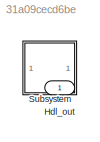
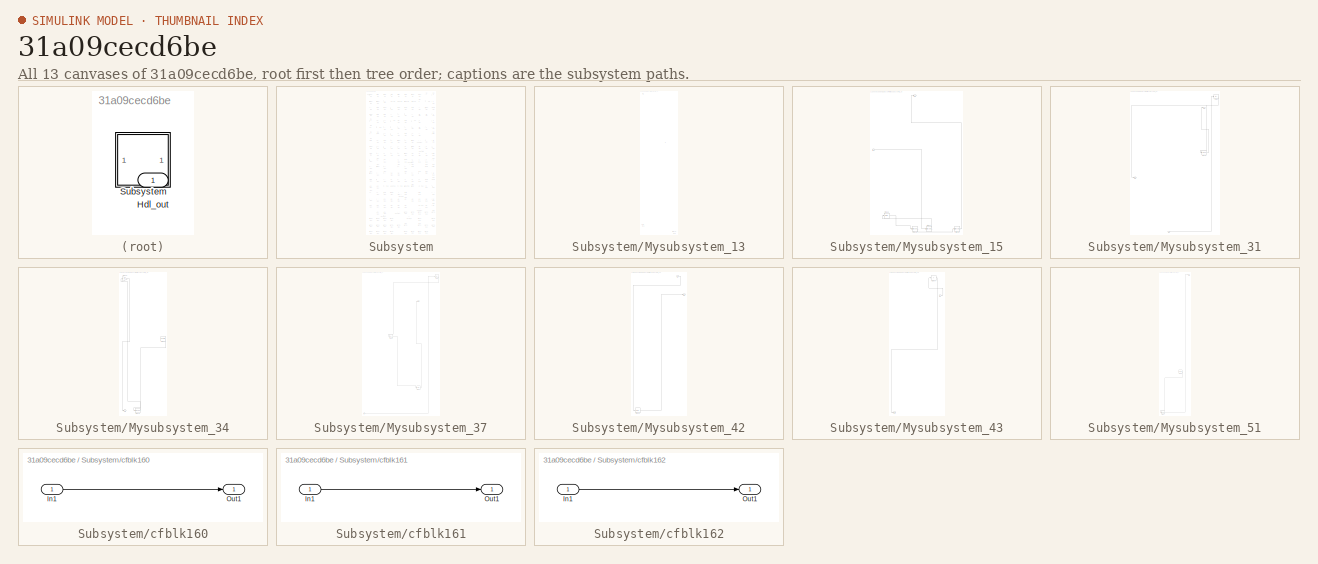
[diagram: thumbnail index - all 13 canvases of the model, root first then tree order]
MODEL slx_31a09cecd6be
KIND model
CONFIG AbsTol = auto
CONFIG EnableMultiTasking = off
CONFIG FixedStep = auto
CONFIG MaxStep = auto
CONFIG MinStep = auto
CONFIG RelTol = 1e-3
CONFIG SampleTimeConstraint = Unconstrained
CONFIG SolverName = VariableStepAuto
CONFIG StartTime = 0.0
CONFIG StopTime = 10.0
BLOCK [Outport] Hdl_out
  OutDataTypeStr = uint8
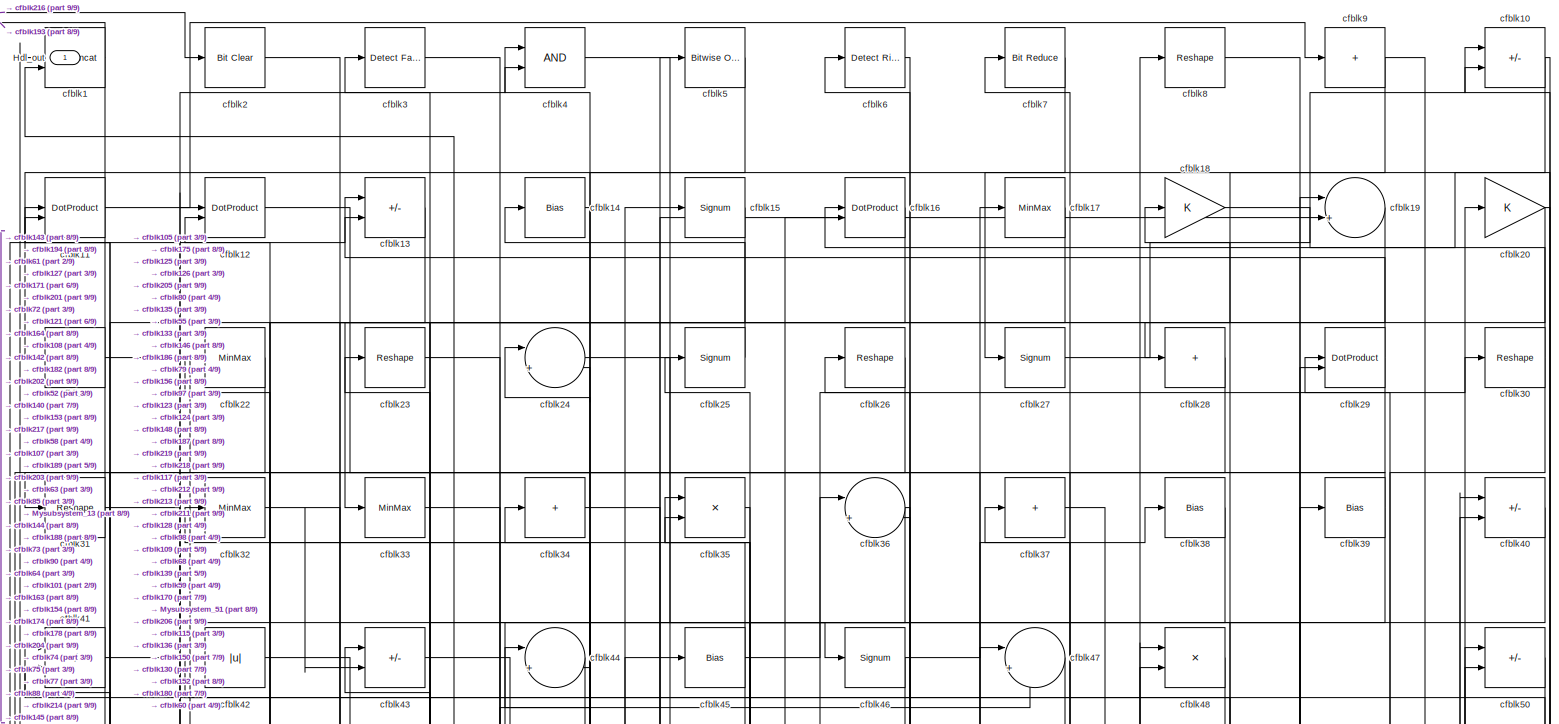
[diagram: Subsystem - part 1/9, full width, top band]
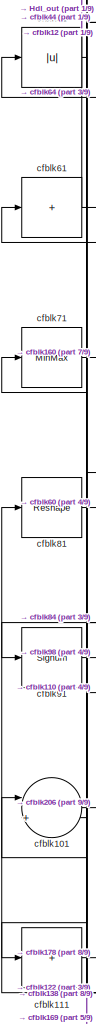
[diagram: Subsystem - part 2/9, middle left region]
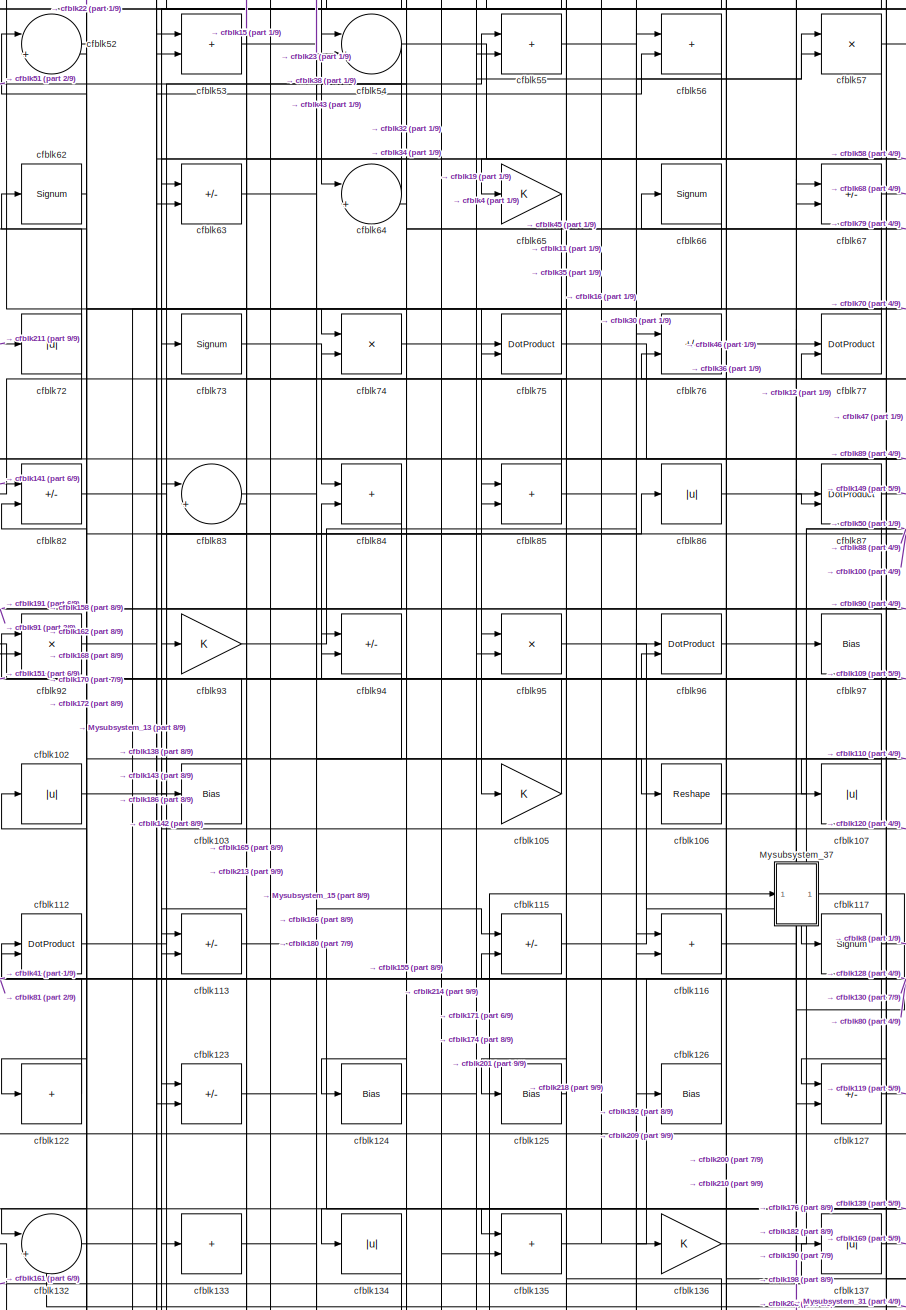
[diagram: Subsystem - part 3/9, central region]
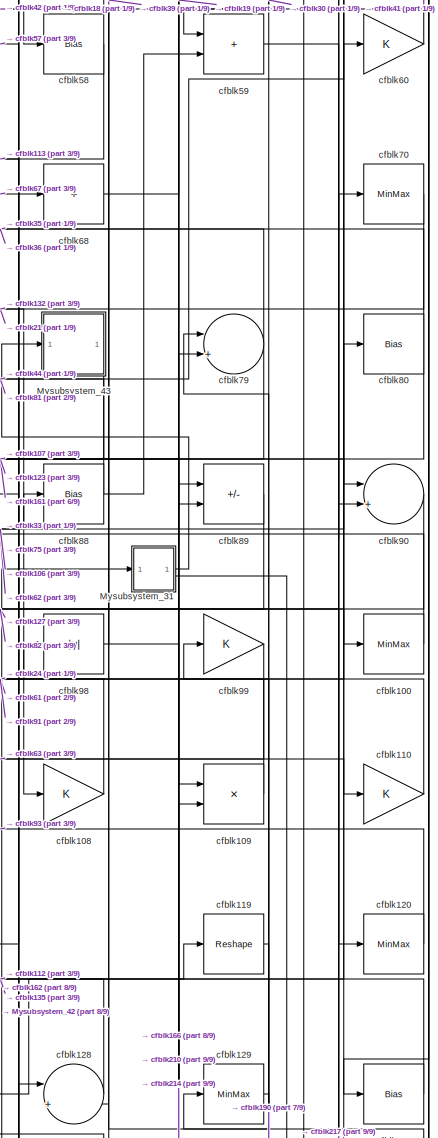
[diagram: Subsystem - part 4/9, middle right region]
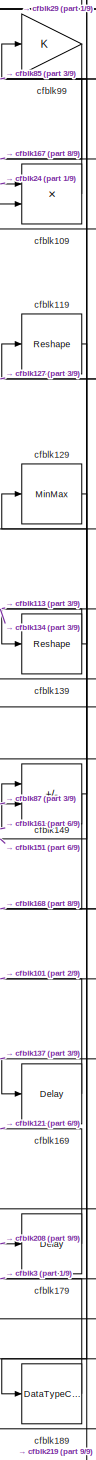
[diagram: Subsystem - part 5/9, middle right region]
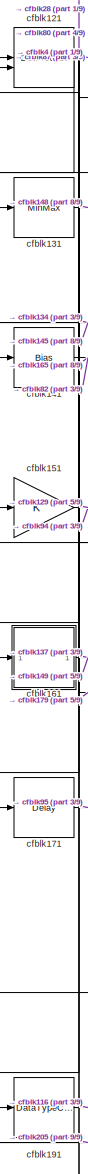
[diagram: Subsystem - part 6/9, bottom left region]
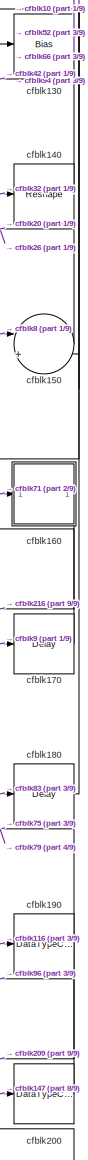
[diagram: Subsystem - part 7/9, bottom right region]
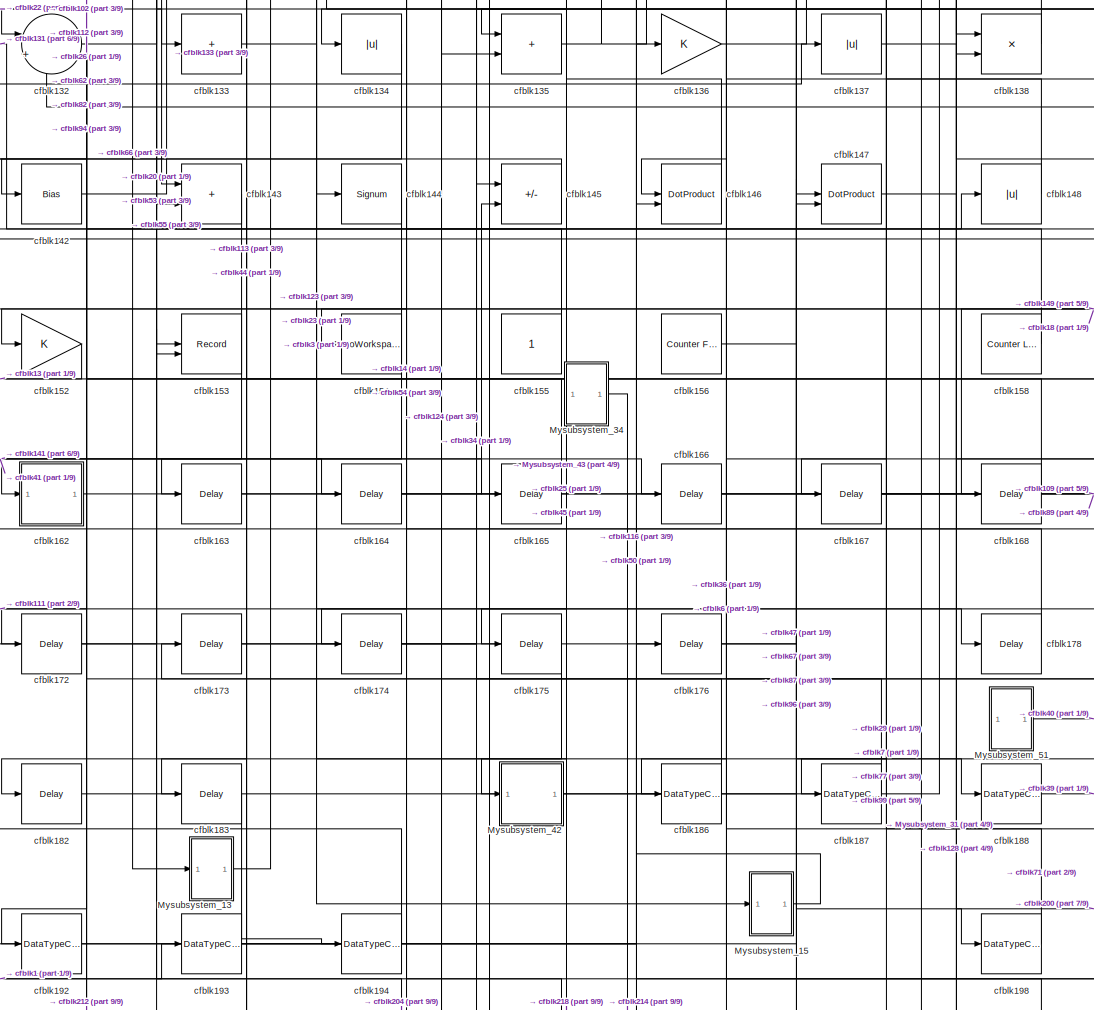
[diagram: Subsystem - part 8/9, bottom center region]
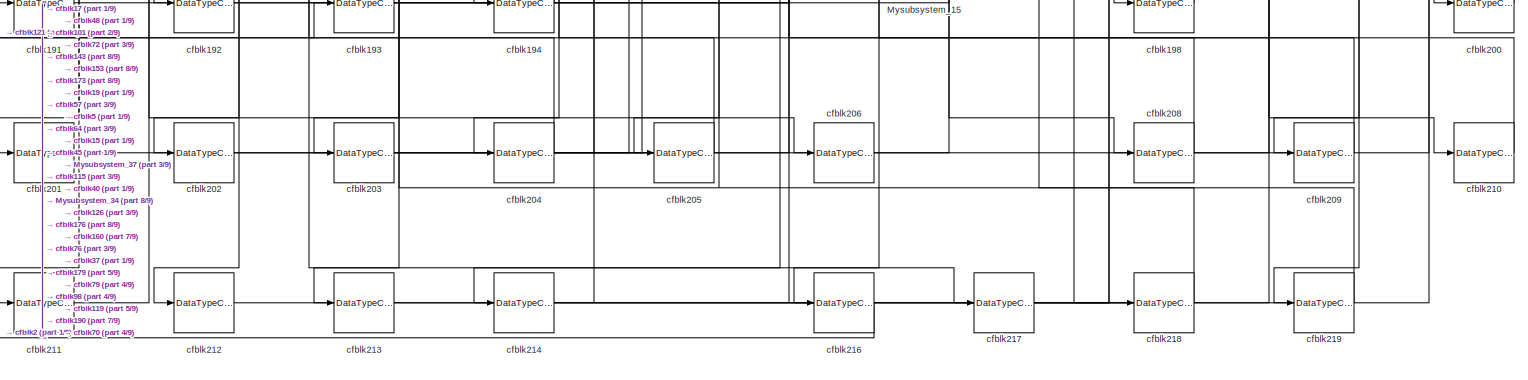
[diagram: Subsystem - part 9/9, full width, bottom band]
BLOCK [SubSystem] Subsystem
BLOCK [Outport] Subsystem/Hdl_out
  OutDataTypeStr = uint8
BLOCK [SubSystem] Subsystem/Mysubsystem_13
  RTWFcnName = Mysubsystem_13
  RTWFcnNameOpts = User specified
  RTWFileNameOpts = Use function name
  RTWSystemCode = Reusable function
  TreatAsAtomicUnit = on
BLOCK [Inport] Subsystem/Mysubsystem_13/In1
BLOCK [Outport] Subsystem/Mysubsystem_13/Out1
BLOCK [Delay] Subsystem/Mysubsystem_13/cfblk181
  InputPortMap = u0
  SampleTime = 1
BLOCK [DataTypeConversion] Subsystem/Mysubsystem_13/cfblk195
  OutDataTypeStr = uint8
  RndMeth = Floor
  SaturateOnIntegerOverflow = off
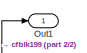
[diagram: Subsystem/Mysubsystem_15 - part 1/2, top center region]
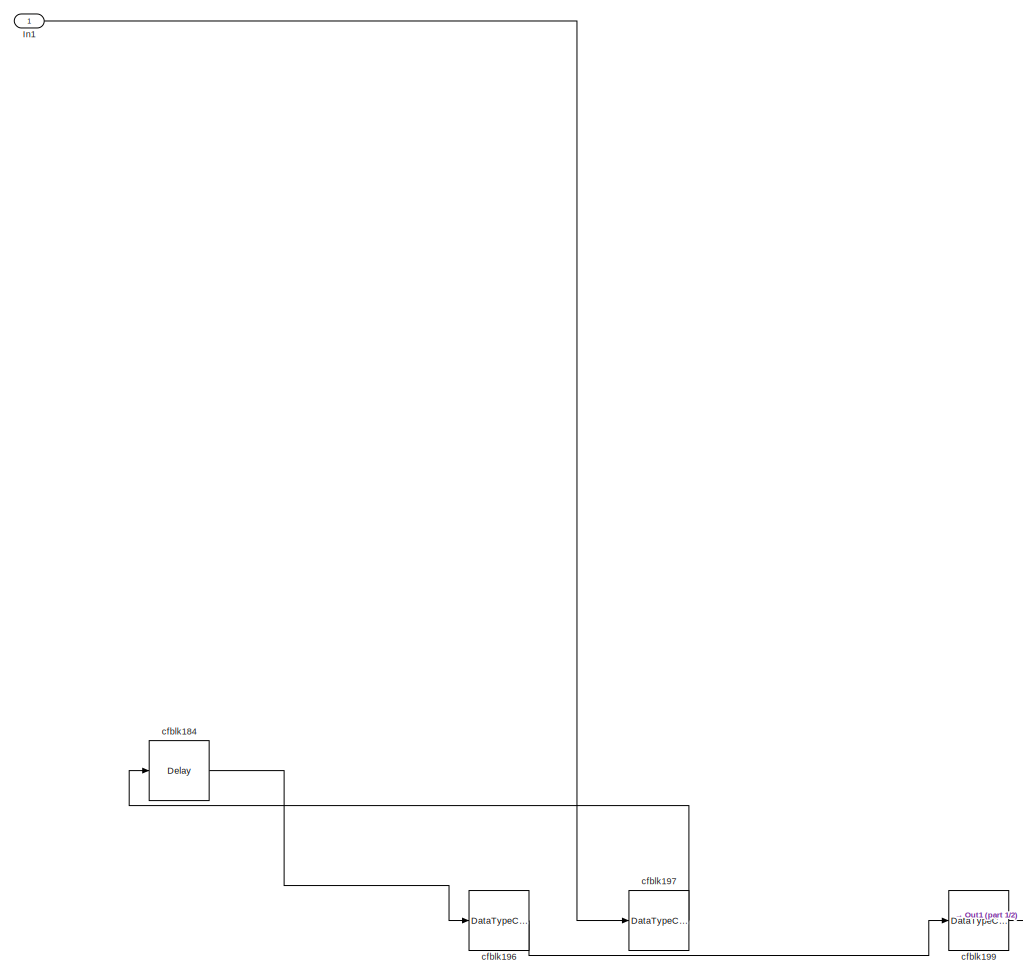
[diagram: Subsystem/Mysubsystem_15 - part 2/2, full width, bottom band]
BLOCK [SubSystem] Subsystem/Mysubsystem_15
  RTWFcnName = Mysubsystem_15
  RTWFcnNameOpts = User specified
  RTWFileNameOpts = Use function name
  RTWSystemCode = Reusable function
  TreatAsAtomicUnit = on
BLOCK [Inport] Subsystem/Mysubsystem_15/In1
BLOCK [Outport] Subsystem/Mysubsystem_15/Out1
BLOCK [Delay] Subsystem/Mysubsystem_15/cfblk184
  InputPortMap = u0
  SampleTime = 1
BLOCK [DataTypeConversion] Subsystem/Mysubsystem_15/cfblk196
  OutDataTypeStr = uint8
  RndMeth = Floor
  SaturateOnIntegerOverflow = off
BLOCK [DataTypeConversion] Subsystem/Mysubsystem_15/cfblk197
  OutDataTypeStr = uint8
  RndMeth = Floor
  SaturateOnIntegerOverflow = off
BLOCK [DataTypeConversion] Subsystem/Mysubsystem_15/cfblk199
  OutDataTypeStr = uint8
  RndMeth = Floor
  SaturateOnIntegerOverflow = off
BLOCK [SubSystem] Subsystem/Mysubsystem_31
  RTWFcnName = Mysubsystem_31
  RTWFcnNameOpts = User specified
  RTWFileNameOpts = Use function name
  RTWSystemCode = Reusable function
  TreatAsAtomicUnit = on
BLOCK [Inport] Subsystem/Mysubsystem_31/In1
BLOCK [Outport] Subsystem/Mysubsystem_31/Out1
BLOCK [Outport] Subsystem/Mysubsystem_31/Out2
  Port = 2
BLOCK [Signum] Subsystem/Mysubsystem_31/cfblk118
BLOCK [Abs] Subsystem/Mysubsystem_31/cfblk69
  SaturateOnIntegerOverflow = off
BLOCK [SubSystem] Subsystem/Mysubsystem_34
  RTWFcnName = Mysubsystem_34
  RTWFcnNameOpts = User specified
  RTWFileNameOpts = Use function name
  RTWSystemCode = Reusable function
  TreatAsAtomicUnit = on
BLOCK [Outport] Subsystem/Mysubsystem_34/Out1
BLOCK [Gain] Subsystem/Mysubsystem_34/cfblk104
BLOCK [Reference] Subsystem/Mysubsystem_34/cfblk157  REF=hdlsllib/Sources/Counter
Free-Running
  SourceBlock = hdlsllib/Sources/Counter\nFree-Running
  SourceType = Counter Free-Running
BLOCK [DataTypeConversion] Subsystem/Mysubsystem_34/cfblk215
  OutDataTypeStr = uint8
  RndMeth = Floor
  SaturateOnIntegerOverflow = off
BLOCK [SubSystem] Subsystem/Mysubsystem_37
  RTWFcnName = Mysubsystem_37
  RTWFcnNameOpts = User specified
  RTWFileNameOpts = Use function name
  RTWSystemCode = Reusable function
  TreatAsAtomicUnit = on
BLOCK [Inport] Subsystem/Mysubsystem_37/In1
BLOCK [Outport] Subsystem/Mysubsystem_37/Out1
BLOCK [Abs] Subsystem/Mysubsystem_37/cfblk114
  SaturateOnIntegerOverflow = off
BLOCK [Delay] Subsystem/Mysubsystem_37/cfblk177
  InputPortMap = u0
  SampleTime = 1
BLOCK [Abs] Subsystem/Mysubsystem_37/cfblk49
  SaturateOnIntegerOverflow = off
BLOCK [SubSystem] Subsystem/Mysubsystem_42
  RTWFcnName = Mysubsystem_42
  RTWFcnNameOpts = User specified
  RTWFileNameOpts = Use function name
  RTWSystemCode = Reusable function
  TreatAsAtomicUnit = on
BLOCK [Inport] Subsystem/Mysubsystem_42/In1
BLOCK [Outport] Subsystem/Mysubsystem_42/Out1
BLOCK [Delay] Subsystem/Mysubsystem_42/cfblk185
  InputPortMap = u0
  SampleTime = 1
BLOCK [SubSystem] Subsystem/Mysubsystem_43
  RTWFcnName = Mysubsystem_43
  RTWFcnNameOpts = User specified
  RTWFileNameOpts = Use function name
  RTWSystemCode = Reusable function
  TreatAsAtomicUnit = on
BLOCK [Inport] Subsystem/Mysubsystem_43/In1
BLOCK [Outport] Subsystem/Mysubsystem_43/Out1
BLOCK [Sum] Subsystem/Mysubsystem_43/cfblk78
  IconShape = rectangular
  Inputs = +
BLOCK [SubSystem] Subsystem/Mysubsystem_51
  RTWFcnName = Mysubsystem_51
  RTWFcnNameOpts = User specified
  RTWFileNameOpts = Use function name
  RTWSystemCode = Reusable function
  TreatAsAtomicUnit = on
BLOCK [Outport] Subsystem/Mysubsystem_51/Out1
BLOCK [Reference] Subsystem/Mysubsystem_51/cfblk159  REF=hdlsllib/Sources/Counter
Free-Running
  SourceBlock = hdlsllib/Sources/Counter\nFree-Running
  SourceType = Counter Free-Running
BLOCK [DataTypeConversion] Subsystem/Mysubsystem_51/cfblk207
  OutDataTypeStr = uint8
  RndMeth = Floor
  SaturateOnIntegerOverflow = off
BLOCK [Reference] Subsystem/cfblk1  REF=hdlsllib/Logic and Bit
Operations/Bit Concat
  SourceBlock = hdlsllib/Logic and Bit\nOperations/Bit Concat
  SourceType = Bit Concat
BLOCK [Sum] Subsystem/cfblk10
  IconShape = rectangular
  Inputs = +-
  OutDataTypeStr = uint8
BLOCK [MinMax] Subsystem/cfblk100
  OutDataTypeStr = uint8
BLOCK [Sum] Subsystem/cfblk101
  Inputs = |++
  OutDataTypeStr = uint8
BLOCK [Abs] Subsystem/cfblk102
  OutDataTypeStr = uint8
  SaturateOnIntegerOverflow = off
BLOCK [Bias] Subsystem/cfblk103
  Bias = 0.0
  SaturateOnIntegerOverflow = off
BLOCK [Gain] Subsystem/cfblk105
  OutDataTypeStr = uint8
BLOCK [Reshape] Subsystem/cfblk106
BLOCK [Abs] Subsystem/cfblk107
  OutDataTypeStr = uint8
  SaturateOnIntegerOverflow = off
BLOCK [Gain] Subsystem/cfblk108
  OutDataTypeStr = uint8
BLOCK [Product] Subsystem/cfblk109
  Inputs = */
  OutDataTypeStr = uint8
  RndMeth = Zero
  SaturateOnIntegerOverflow = on
BLOCK [DotProduct] Subsystem/cfblk11
  OutDataTypeStr = uint8
BLOCK [Gain] Subsystem/cfblk110
  OutDataTypeStr = uint8
BLOCK [Sum] Subsystem/cfblk111
  IconShape = rectangular
  Inputs = +
  OutDataTypeStr = uint8
BLOCK [DotProduct] Subsystem/cfblk112
  OutDataTypeStr = uint8
BLOCK [Sum] Subsystem/cfblk113
  IconShape = rectangular
  Inputs = +-
  OutDataTypeStr = uint8
BLOCK [Sum] Subsystem/cfblk115
  IconShape = rectangular
  Inputs = +-
  OutDataTypeStr = uint8
BLOCK [Sum] Subsystem/cfblk116
  IconShape = rectangular
  OutDataTypeStr = uint8
BLOCK [Signum] Subsystem/cfblk117
BLOCK [Reshape] Subsystem/cfblk119
BLOCK [DotProduct] Subsystem/cfblk12
  OutDataTypeStr = uint8
BLOCK [MinMax] Subsystem/cfblk120
  OutDataTypeStr = uint8
BLOCK [DotProduct] Subsystem/cfblk121
  OutDataTypeStr = uint8
BLOCK [Sum] Subsystem/cfblk122
  IconShape = rectangular
  Inputs = +
  OutDataTypeStr = uint8
BLOCK [Sum] Subsystem/cfblk123
  IconShape = rectangular
  Inputs = +-
  OutDataTypeStr = uint8
BLOCK [Bias] Subsystem/cfblk124
  Bias = 0.0
  SaturateOnIntegerOverflow = off
BLOCK [Bias] Subsystem/cfblk125
  Bias = 0.0
  SaturateOnIntegerOverflow = off
BLOCK [Bias] Subsystem/cfblk126
  Bias = 0.0
  SaturateOnIntegerOverflow = off
BLOCK [Sum] Subsystem/cfblk127
  IconShape = rectangular
  Inputs = +-
  OutDataTypeStr = uint8
BLOCK [Sum] Subsystem/cfblk128
  Inputs = |++
  OutDataTypeStr = uint8
BLOCK [MinMax] Subsystem/cfblk129
  OutDataTypeStr = uint8
BLOCK [Sum] Subsystem/cfblk13
  IconShape = rectangular
  Inputs = +-
  OutDataTypeStr = uint8
BLOCK [Bias] Subsystem/cfblk130
  Bias = 0.0
  SaturateOnIntegerOverflow = off
BLOCK [MinMax] Subsystem/cfblk131
  OutDataTypeStr = uint8
BLOCK [Sum] Subsystem/cfblk132
  Inputs = |++
  OutDataTypeStr = uint8
BLOCK [Sum] Subsystem/cfblk133
  IconShape = rectangular
  Inputs = +
  OutDataTypeStr = uint8
BLOCK [Abs] Subsystem/cfblk134
  OutDataTypeStr = uint8
  SaturateOnIntegerOverflow = off
BLOCK [Sum] Subsystem/cfblk135
  IconShape = rectangular
  OutDataTypeStr = uint8
BLOCK [Gain] Subsystem/cfblk136
  OutDataTypeStr = uint8
BLOCK [Abs] Subsystem/cfblk137
  OutDataTypeStr = uint8
  SaturateOnIntegerOverflow = off
BLOCK [Product] Subsystem/cfblk138
  Inputs = */
  OutDataTypeStr = uint8
  RndMeth = Zero
  SaturateOnIntegerOverflow = on
BLOCK [Reshape] Subsystem/cfblk139
BLOCK [Bias] Subsystem/cfblk14
  Bias = 0.0
  SaturateOnIntegerOverflow = off
BLOCK [Reshape] Subsystem/cfblk140
BLOCK [Bias] Subsystem/cfblk141
  Bias = 0.0
  SaturateOnIntegerOverflow = off
BLOCK [Bias] Subsystem/cfblk142
  Bias = 0.0
  SaturateOnIntegerOverflow = off
BLOCK [Sum] Subsystem/cfblk143
  IconShape = rectangular
  OutDataTypeStr = uint8
BLOCK [Signum] Subsystem/cfblk144
BLOCK [Sum] Subsystem/cfblk145
  IconShape = rectangular
  Inputs = +-
  OutDataTypeStr = uint8
BLOCK [DotProduct] Subsystem/cfblk146
  OutDataTypeStr = uint8
BLOCK [DotProduct] Subsystem/cfblk147
  OutDataTypeStr = uint8
BLOCK [Abs] Subsystem/cfblk148
  OutDataTypeStr = uint8
  SaturateOnIntegerOverflow = off
BLOCK [Sum] Subsystem/cfblk149
  IconShape = rectangular
  Inputs = +-
  OutDataTypeStr = uint8
BLOCK [Signum] Subsystem/cfblk15
BLOCK [Sum] Subsystem/cfblk150
  Inputs = |++
  OutDataTypeStr = uint8
BLOCK [Gain] Subsystem/cfblk151
  OutDataTypeStr = uint8
BLOCK [Gain] Subsystem/cfblk152
  OutDataTypeStr = uint8
BLOCK [Record] Subsystem/cfblk153
  CompatibilityTag = XY
  FileSettingsInternal = {"entries":[{"content":{"excelSettings":{"content":{},"type":"Streamout.ExcelSettings"}},"type":"Streamout.FileSettingStorage","uuid":""}],"packageUris":["http:\/\/schema.mathworks.com\/mf0\/streamout_blocks\/R2020a"],"version":"1.0"}
  Layout = [1 1]
  SignalsInternal = {"entries":[{"content":{"signals":[{"content":{"blockPath":[],"dimensions":[1],"domain":"","lineColor":"#a2142f","plots":[1],"port":1,"signalID":21014,"signalName":"cfblk204"},"type":"RecordBlkView.Signal","uuid":""},{"content":{"blockPath":[],"dimensions":[1],"domain":"","lineColor":"#139fff","plots":[1],"port":2,"signalID":21017,"signalName":"cfblk20"},"type":"RecordBlkView.Signal","uuid":""}]},...<+143ch>
  VisualizationBindings = {"xyplotplugin":{"info":[{"series":[{"bindingParametersList":[{"parameter":"X-Axis","signalID":21014,"signalName":"cfblk204"},{"parameter":"Y-Axis","signalID":21017,"signalName":"cfblk20"}],"seriesID":1437}],"subplotID":1}]}}
  st = -1
BLOCK [ToWorkspace] Subsystem/cfblk154
  MaxDataPoints = inf
  SampleTime = -1
  SaveFormat = Timeseries
  VariableName = simout
BLOCK [Constant] Subsystem/cfblk155
  OutDataTypeStr = uint8
  SampleTime = -1
BLOCK [Reference] Subsystem/cfblk156  REF=hdlsllib/Sources/Counter
Free-Running
  SourceBlock = hdlsllib/Sources/Counter\nFree-Running
  SourceType = Counter Free-Running
BLOCK [Reference] Subsystem/cfblk158  REF=hdlsllib/Sources/Counter
Limited
  SourceBlock = hdlsllib/Sources/Counter\nLimited
  SourceType = Counter Limited
BLOCK [DotProduct] Subsystem/cfblk16
  OutDataTypeStr = uint8
BLOCK [SubSystem] Subsystem/cfblk160
  LibrarySourceBlock = hdlsllib/Ports &\nSubsystems/Subsystem
BLOCK [Inport] Subsystem/cfblk160/In1
BLOCK [Outport] Subsystem/cfblk160/Out1
BLOCK [SubSystem] Subsystem/cfblk161
  LibrarySourceBlock = hdlsllib/Ports &\nSubsystems/Subsystem
BLOCK [Inport] Subsystem/cfblk161/In1
BLOCK [Outport] Subsystem/cfblk161/Out1
BLOCK [SubSystem] Subsystem/cfblk162
  LibrarySourceBlock = hdlsllib/Ports &\nSubsystems/Subsystem
BLOCK [Inport] Subsystem/cfblk162/In1
BLOCK [Outport] Subsystem/cfblk162/Out1
BLOCK [Delay] Subsystem/cfblk163
  InputPortMap = u0
  SampleTime = 1
BLOCK [Delay] Subsystem/cfblk164
  InputPortMap = u0
  SampleTime = 1
BLOCK [Delay] Subsystem/cfblk165
  InputPortMap = u0
  SampleTime = 1
BLOCK [Delay] Subsystem/cfblk166
  InputPortMap = u0
  SampleTime = 1
BLOCK [Delay] Subsystem/cfblk167
  InputPortMap = u0
  SampleTime = 1
BLOCK [Delay] Subsystem/cfblk168
  InputPortMap = u0
  SampleTime = 1
BLOCK [Delay] Subsystem/cfblk169
  InputPortMap = u0
  SampleTime = 1
BLOCK [MinMax] Subsystem/cfblk17
  OutDataTypeStr = uint8
BLOCK [Delay] Subsystem/cfblk170
  InputPortMap = u0
  SampleTime = 1
BLOCK [Delay] Subsystem/cfblk171
  InputPortMap = u0
  SampleTime = 1
BLOCK [Delay] Subsystem/cfblk172
  InputPortMap = u0
  SampleTime = 1
BLOCK [Delay] Subsystem/cfblk173
  InputPortMap = u0
  SampleTime = 1
BLOCK [Delay] Subsystem/cfblk174
  InputPortMap = u0
  SampleTime = 1
BLOCK [Delay] Subsystem/cfblk175
  InputPortMap = u0
  SampleTime = 1
BLOCK [Delay] Subsystem/cfblk176
  InputPortMap = u0
  SampleTime = 1
BLOCK [Delay] Subsystem/cfblk178
  InputPortMap = u0
  SampleTime = 1
BLOCK [Delay] Subsystem/cfblk179
  InputPortMap = u0
  SampleTime = 1
BLOCK [Gain] Subsystem/cfblk18
  OutDataTypeStr = uint8
BLOCK [Delay] Subsystem/cfblk180
  InputPortMap = u0
  SampleTime = 1
BLOCK [Delay] Subsystem/cfblk182
  InputPortMap = u0
  SampleTime = 1
BLOCK [Delay] Subsystem/cfblk183
  InputPortMap = u0
  SampleTime = 1
BLOCK [DataTypeConversion] Subsystem/cfblk186
  OutDataTypeStr = uint8
  RndMeth = Floor
  SaturateOnIntegerOverflow = off
BLOCK [DataTypeConversion] Subsystem/cfblk187
  OutDataTypeStr = uint8
  RndMeth = Floor
  SaturateOnIntegerOverflow = off
BLOCK [DataTypeConversion] Subsystem/cfblk188
  OutDataTypeStr = uint8
  RndMeth = Floor
  SaturateOnIntegerOverflow = off
BLOCK [DataTypeConversion] Subsystem/cfblk189
  OutDataTypeStr = uint8
  RndMeth = Floor
  SaturateOnIntegerOverflow = off
BLOCK [Sum] Subsystem/cfblk19
  Inputs = |++
  OutDataTypeStr = uint8
BLOCK [DataTypeConversion] Subsystem/cfblk190
  OutDataTypeStr = uint8
  RndMeth = Floor
  SaturateOnIntegerOverflow = off
BLOCK [DataTypeConversion] Subsystem/cfblk191
  OutDataTypeStr = uint8
  RndMeth = Floor
  SaturateOnIntegerOverflow = off
BLOCK [DataTypeConversion] Subsystem/cfblk192
  OutDataTypeStr = uint8
  RndMeth = Floor
  SaturateOnIntegerOverflow = off
BLOCK [DataTypeConversion] Subsystem/cfblk193
  OutDataTypeStr = uint8
  RndMeth = Floor
  SaturateOnIntegerOverflow = off
BLOCK [DataTypeConversion] Subsystem/cfblk194
  OutDataTypeStr = uint8
  RndMeth = Floor
  SaturateOnIntegerOverflow = off
BLOCK [DataTypeConversion] Subsystem/cfblk198
  OutDataTypeStr = uint8
  RndMeth = Floor
  SaturateOnIntegerOverflow = off
BLOCK [Reference] Subsystem/cfblk2  REF=simulink/Logic and Bit
Operations/Bit Clear
  LibrarySourceBlock = hdlsllib/Logic and Bit\nOperations/Bit Clear
  SourceBlock = simulink/Logic and Bit\nOperations/Bit Clear
  SourceType = Bit Clear
BLOCK [Gain] Subsystem/cfblk20
  OutDataTypeStr = uint8
BLOCK [DataTypeConversion] Subsystem/cfblk200
  OutDataTypeStr = uint8
  RndMeth = Floor
  SaturateOnIntegerOverflow = off
BLOCK [DataTypeConversion] Subsystem/cfblk201
  OutDataTypeStr = uint8
  RndMeth = Floor
  SaturateOnIntegerOverflow = off
BLOCK [DataTypeConversion] Subsystem/cfblk202
  OutDataTypeStr = uint8
  RndMeth = Floor
  SaturateOnIntegerOverflow = off
BLOCK [DataTypeConversion] Subsystem/cfblk203
  OutDataTypeStr = uint8
  RndMeth = Floor
  SaturateOnIntegerOverflow = off
BLOCK [DataTypeConversion] Subsystem/cfblk204
  OutDataTypeStr = uint8
  RndMeth = Floor
  SaturateOnIntegerOverflow = off
BLOCK [DataTypeConversion] Subsystem/cfblk205
  OutDataTypeStr = uint8
  RndMeth = Floor
  SaturateOnIntegerOverflow = off
BLOCK [DataTypeConversion] Subsystem/cfblk206
  OutDataTypeStr = uint8
  RndMeth = Floor
  SaturateOnIntegerOverflow = off
BLOCK [DataTypeConversion] Subsystem/cfblk208
  OutDataTypeStr = uint8
  RndMeth = Floor
  SaturateOnIntegerOverflow = off
BLOCK [DataTypeConversion] Subsystem/cfblk209
  OutDataTypeStr = uint8
  RndMeth = Floor
  SaturateOnIntegerOverflow = off
BLOCK [Sum] Subsystem/cfblk21
  IconShape = rectangular
  Inputs = +
  OutDataTypeStr = uint8
BLOCK [DataTypeConversion] Subsystem/cfblk210
  OutDataTypeStr = uint8
  RndMeth = Floor
  SaturateOnIntegerOverflow = off
BLOCK [DataTypeConversion] Subsystem/cfblk211
  OutDataTypeStr = uint8
  RndMeth = Floor
  SaturateOnIntegerOverflow = off
BLOCK [DataTypeConversion] Subsystem/cfblk212
  OutDataTypeStr = uint8
  RndMeth = Floor
  SaturateOnIntegerOverflow = off
BLOCK [DataTypeConversion] Subsystem/cfblk213
  OutDataTypeStr = uint8
  RndMeth = Floor
  SaturateOnIntegerOverflow = off
BLOCK [DataTypeConversion] Subsystem/cfblk214
  OutDataTypeStr = uint8
  RndMeth = Floor
  SaturateOnIntegerOverflow = off
BLOCK [DataTypeConversion] Subsystem/cfblk216
  OutDataTypeStr = uint8
  RndMeth = Floor
  SaturateOnIntegerOverflow = off
BLOCK [DataTypeConversion] Subsystem/cfblk217
  OutDataTypeStr = uint8
  RndMeth = Floor
  SaturateOnIntegerOverflow = off
BLOCK [DataTypeConversion] Subsystem/cfblk218
  OutDataTypeStr = uint8
  RndMeth = Floor
  SaturateOnIntegerOverflow = off
BLOCK [DataTypeConversion] Subsystem/cfblk219
  OutDataTypeStr = uint8
  RndMeth = Floor
  SaturateOnIntegerOverflow = off
BLOCK [MinMax] Subsystem/cfblk22
  OutDataTypeStr = uint8
BLOCK [Reshape] Subsystem/cfblk23
BLOCK [Sum] Subsystem/cfblk24
  Inputs = |++
  OutDataTypeStr = uint8
BLOCK [Signum] Subsystem/cfblk25
BLOCK [Reshape] Subsystem/cfblk26
BLOCK [Signum] Subsystem/cfblk27
BLOCK [Sum] Subsystem/cfblk28
  IconShape = rectangular
  Inputs = +
  OutDataTypeStr = uint8
BLOCK [DotProduct] Subsystem/cfblk29
  OutDataTypeStr = uint8
BLOCK [Reference] Subsystem/cfblk3  REF=hdlsllib/Logic and Bit
Operations/Detect Fall
Nonpositive
  SourceBlock = hdlsllib/Logic and Bit\nOperations/Detect Fall\nNonpositive
  SourceType = Detect Fall Nonpositive
BLOCK [Reshape] Subsystem/cfblk30
BLOCK [Reshape] Subsystem/cfblk31
BLOCK [MinMax] Subsystem/cfblk32
  OutDataTypeStr = uint8
BLOCK [MinMax] Subsystem/cfblk33
  OutDataTypeStr = uint8
BLOCK [Sum] Subsystem/cfblk34
  IconShape = rectangular
  Inputs = +
  OutDataTypeStr = uint8
BLOCK [Product] Subsystem/cfblk35
  Inputs = */
  OutDataTypeStr = uint8
  RndMeth = Zero
  SaturateOnIntegerOverflow = on
BLOCK [Sum] Subsystem/cfblk36
  Inputs = |++
  OutDataTypeStr = uint8
BLOCK [Sum] Subsystem/cfblk37
  IconShape = rectangular
  Inputs = +
  OutDataTypeStr = uint8
BLOCK [Bias] Subsystem/cfblk38
  Bias = 0.0
  SaturateOnIntegerOverflow = off
BLOCK [Bias] Subsystem/cfblk39
  Bias = 0.0
  SaturateOnIntegerOverflow = off
BLOCK [Logic] Subsystem/cfblk4
  AllPortsSameDT = off
  OutDataTypeStr = boolean
BLOCK [Sum] Subsystem/cfblk40
  IconShape = rectangular
  Inputs = +-
  OutDataTypeStr = uint8
BLOCK [Sum] Subsystem/cfblk41
  IconShape = rectangular
  Inputs = +-
  OutDataTypeStr = uint8
BLOCK [Abs] Subsystem/cfblk42
  OutDataTypeStr = uint8
  SaturateOnIntegerOverflow = off
BLOCK [Sum] Subsystem/cfblk43
  IconShape = rectangular
  Inputs = +-
  OutDataTypeStr = uint8
BLOCK [Sum] Subsystem/cfblk44
  Inputs = |++
  OutDataTypeStr = uint8
BLOCK [Bias] Subsystem/cfblk45
  Bias = 0.0
  SaturateOnIntegerOverflow = off
BLOCK [Signum] Subsystem/cfblk46
BLOCK [Sum] Subsystem/cfblk47
  Inputs = |++
  OutDataTypeStr = uint8
BLOCK [Product] Subsystem/cfblk48
  Inputs = */
  OutDataTypeStr = uint8
  RndMeth = Zero
  SaturateOnIntegerOverflow = on
BLOCK [Reference] Subsystem/cfblk5  REF=simulink/Logic and Bit
Operations/Bitwise
Operator
  LibrarySourceBlock = hdlsllib/Logic and Bit\nOperations/Bitwise\nOperator
  SourceBlock = simulink/Logic and Bit\nOperations/Bitwise\nOperator
  SourceType = Bitwise Operator
BLOCK [Sum] Subsystem/cfblk50
  IconShape = rectangular
  Inputs = +-
  OutDataTypeStr = uint8
BLOCK [Abs] Subsystem/cfblk51
  OutDataTypeStr = uint8
  SaturateOnIntegerOverflow = off
BLOCK [Sum] Subsystem/cfblk52
  Inputs = |++
  OutDataTypeStr = uint8
BLOCK [Sum] Subsystem/cfblk53
  IconShape = rectangular
  OutDataTypeStr = uint8
BLOCK [Sum] Subsystem/cfblk54
  Inputs = |++
  OutDataTypeStr = uint8
BLOCK [Sum] Subsystem/cfblk55
  IconShape = rectangular
  OutDataTypeStr = uint8
BLOCK [Sum] Subsystem/cfblk56
  IconShape = rectangular
  OutDataTypeStr = uint8
BLOCK [Product] Subsystem/cfblk57
  Inputs = */
  OutDataTypeStr = uint8
  RndMeth = Zero
  SaturateOnIntegerOverflow = on
BLOCK [Bias] Subsystem/cfblk58
  Bias = 0.0
  SaturateOnIntegerOverflow = off
BLOCK [Sum] Subsystem/cfblk59
  IconShape = rectangular
  OutDataTypeStr = uint8
BLOCK [Reference] Subsystem/cfblk6  REF=hdlsllib/Logic and Bit
Operations/Detect Rise
Positive
  SourceBlock = hdlsllib/Logic and Bit\nOperations/Detect Rise\nPositive
  SourceType = Detect Rise Positive
BLOCK [Gain] Subsystem/cfblk60
  OutDataTypeStr = uint8
BLOCK [Sum] Subsystem/cfblk61
  IconShape = rectangular
  Inputs = +
  OutDataTypeStr = uint8
BLOCK [Signum] Subsystem/cfblk62
BLOCK [Sum] Subsystem/cfblk63
  IconShape = rectangular
  Inputs = +-
  OutDataTypeStr = uint8
BLOCK [Sum] Subsystem/cfblk64
  Inputs = |++
  OutDataTypeStr = uint8
BLOCK [Gain] Subsystem/cfblk65
  OutDataTypeStr = uint8
BLOCK [Signum] Subsystem/cfblk66
BLOCK [Sum] Subsystem/cfblk67
  IconShape = rectangular
  Inputs = +-
  OutDataTypeStr = uint8
BLOCK [Sum] Subsystem/cfblk68
  IconShape = rectangular
  Inputs = +
  OutDataTypeStr = uint8
BLOCK [Reference] Subsystem/cfblk7  REF=hdlsllib/Logic and Bit
Operations/Bit Reduce
  SourceBlock = hdlsllib/Logic and Bit\nOperations/Bit Reduce
  SourceType = Bit Reduce
BLOCK [MinMax] Subsystem/cfblk70
  OutDataTypeStr = uint8
BLOCK [MinMax] Subsystem/cfblk71
  OutDataTypeStr = uint8
BLOCK [Abs] Subsystem/cfblk72
  OutDataTypeStr = uint8
  SaturateOnIntegerOverflow = off
BLOCK [Signum] Subsystem/cfblk73
BLOCK [Product] Subsystem/cfblk74
  Inputs = */
  OutDataTypeStr = uint8
  RndMeth = Zero
  SaturateOnIntegerOverflow = on
BLOCK [DotProduct] Subsystem/cfblk75
  OutDataTypeStr = uint8
BLOCK [Sum] Subsystem/cfblk76
  IconShape = rectangular
  Inputs = +-
  OutDataTypeStr = uint8
BLOCK [DotProduct] Subsystem/cfblk77
  OutDataTypeStr = uint8
BLOCK [Sum] Subsystem/cfblk79
  Inputs = |++
  OutDataTypeStr = uint8
BLOCK [Reshape] Subsystem/cfblk8
BLOCK [Bias] Subsystem/cfblk80
  Bias = 0.0
  SaturateOnIntegerOverflow = off
BLOCK [Reshape] Subsystem/cfblk81
BLOCK [Sum] Subsystem/cfblk82
  IconShape = rectangular
  Inputs = +-
  OutDataTypeStr = uint8
BLOCK [Sum] Subsystem/cfblk83
  Inputs = |++
  OutDataTypeStr = uint8
BLOCK [Sum] Subsystem/cfblk84
  IconShape = rectangular
  OutDataTypeStr = uint8
BLOCK [Sum] Subsystem/cfblk85
  IconShape = rectangular
  OutDataTypeStr = uint8
BLOCK [Abs] Subsystem/cfblk86
  OutDataTypeStr = uint8
  SaturateOnIntegerOverflow = off
BLOCK [DotProduct] Subsystem/cfblk87
  OutDataTypeStr = uint8
BLOCK [Bias] Subsystem/cfblk88
  Bias = 0.0
  SaturateOnIntegerOverflow = off
BLOCK [Sum] Subsystem/cfblk89
  IconShape = rectangular
  Inputs = +-
  OutDataTypeStr = uint8
BLOCK [Sum] Subsystem/cfblk9
  IconShape = rectangular
  Inputs = +
  OutDataTypeStr = uint8
BLOCK [Sum] Subsystem/cfblk90
  Inputs = |++
  OutDataTypeStr = uint8
BLOCK [Signum] Subsystem/cfblk91
BLOCK [Product] Subsystem/cfblk92
  Inputs = */
  OutDataTypeStr = uint8
  RndMeth = Zero
  SaturateOnIntegerOverflow = on
BLOCK [Gain] Subsystem/cfblk93
  OutDataTypeStr = uint8
BLOCK [Sum] Subsystem/cfblk94
  IconShape = rectangular
  Inputs = +-
  OutDataTypeStr = uint8
BLOCK [Product] Subsystem/cfblk95
  Inputs = */
  OutDataTypeStr = uint8
  RndMeth = Zero
  SaturateOnIntegerOverflow = on
BLOCK [DotProduct] Subsystem/cfblk96
  OutDataTypeStr = uint8
BLOCK [Bias] Subsystem/cfblk97
  Bias = 0.0
  SaturateOnIntegerOverflow = off
BLOCK [Abs] Subsystem/cfblk98
  OutDataTypeStr = uint8
  SaturateOnIntegerOverflow = off
BLOCK [Gain] Subsystem/cfblk99
  OutDataTypeStr = uint8
LINE Subsystem/Mysubsystem_13/In1:1 -> Subsystem/Mysubsystem_13/cfblk181:1
LINE Subsystem/Mysubsystem_13/cfblk181:1 -> Subsystem/Mysubsystem_13/cfblk195:1
LINE Subsystem/Mysubsystem_13/cfblk195:1 -> Subsystem/Mysubsystem_13/Out1:1
LINE Subsystem/Mysubsystem_13:1 -> Subsystem/cfblk1:2
LINE Subsystem/Mysubsystem_15/In1:1 -> Subsystem/Mysubsystem_15/cfblk197:1
LINE Subsystem/Mysubsystem_15/cfblk184:1 -> Subsystem/Mysubsystem_15/cfblk196:1
LINE Subsystem/Mysubsystem_15/cfblk196:1 -> Subsystem/Mysubsystem_15/cfblk199:1
LINE Subsystem/Mysubsystem_15/cfblk197:1 -> Subsystem/Mysubsystem_15/cfblk184:1
LINE Subsystem/Mysubsystem_15/cfblk199:1 -> Subsystem/Mysubsystem_15/Out1:1
LINE Subsystem/Mysubsystem_15:1 -> Subsystem/cfblk96:1
LINE Subsystem/Mysubsystem_31/In1:1 -> Subsystem/Mysubsystem_31/cfblk69:1
LINE Subsystem/Mysubsystem_31/cfblk118:1 -> Subsystem/Mysubsystem_31/Out1:1
NET Subsystem/Mysubsystem_31/cfblk69:1 -> Subsystem/Mysubsystem_31/Out2:1, Subsystem/Mysubsystem_31/cfblk118:1
LINE Subsystem/Mysubsystem_31:1 -> Subsystem/Mysubsystem_43:1
LINE Subsystem/Mysubsystem_31:2 -> Subsystem/cfblk132:2
LINE Subsystem/Mysubsystem_34/cfblk104:1 -> Subsystem/Mysubsystem_34/Out1:1
LINE Subsystem/Mysubsystem_34/cfblk157:1 -> Subsystem/Mysubsystem_34/cfblk215:1
LINE Subsystem/Mysubsystem_34/cfblk215:1 -> Subsystem/Mysubsystem_34/cfblk104:1
LINE Subsystem/Mysubsystem_34:1 -> Subsystem/cfblk214:1
LINE Subsystem/Mysubsystem_37/In1:1 -> Subsystem/Mysubsystem_37/cfblk49:1
LINE Subsystem/Mysubsystem_37/cfblk114:1 -> Subsystem/Mysubsystem_37/cfblk177:1
LINE Subsystem/Mysubsystem_37/cfblk177:1 -> Subsystem/Mysubsystem_37/Out1:1
LINE Subsystem/Mysubsystem_37/cfblk49:1 -> Subsystem/Mysubsystem_37/cfblk114:1
LINE Subsystem/Mysubsystem_37:1 -> Subsystem/cfblk77:1
LINE Subsystem/Mysubsystem_42/In1:1 -> Subsystem/Mysubsystem_42/cfblk185:1
LINE Subsystem/Mysubsystem_42/cfblk185:1 -> Subsystem/Mysubsystem_42/Out1:1
LINE Subsystem/Mysubsystem_42:1 -> Subsystem/Mysubsystem_31:1
LINE Subsystem/Mysubsystem_43/In1:1 -> Subsystem/Mysubsystem_43/cfblk78:1
LINE Subsystem/Mysubsystem_43/cfblk78:1 -> Subsystem/Mysubsystem_43/Out1:1
LINE Subsystem/Mysubsystem_43:1 -> Subsystem/Mysubsystem_42:1
LINE Subsystem/Mysubsystem_51/cfblk159:1 -> Subsystem/Mysubsystem_51/cfblk207:1
LINE Subsystem/Mysubsystem_51/cfblk207:1 -> Subsystem/Mysubsystem_51/Out1:1
LINE Subsystem/Mysubsystem_51:1 -> Subsystem/cfblk40:2
LINE Subsystem/cfblk100:1 -> Subsystem/cfblk62:1
LINE Subsystem/cfblk101:1 -> Subsystem/cfblk206:1
LINE Subsystem/cfblk102:1 -> Subsystem/cfblk85:2
LINE Subsystem/cfblk103:1 -> Subsystem/cfblk92:1
NET Subsystem/cfblk105:1 -> Subsystem/cfblk83:1, Subsystem/cfblk84:2
LINE Subsystem/cfblk106:1 -> Subsystem/cfblk88:1
NET Subsystem/cfblk107:1 -> Subsystem/cfblk43:1, Subsystem/cfblk74:2
NET Subsystem/cfblk108:1 -> Subsystem/cfblk24:1, Subsystem/cfblk24:2
LINE Subsystem/cfblk109:1 -> Subsystem/cfblk85:1
NET Subsystem/cfblk10:1 -> Subsystem/cfblk150:2, Subsystem/cfblk21:1
LINE Subsystem/cfblk110:1 -> Subsystem/cfblk61:1
LINE Subsystem/cfblk111:1 -> Subsystem/cfblk178:1
LINE Subsystem/cfblk112:1 -> Subsystem/cfblk54:2
LINE Subsystem/cfblk113:1 -> Subsystem/cfblk139:1
LINE Subsystem/cfblk115:1 -> Subsystem/cfblk50:2
LINE Subsystem/cfblk116:1 -> Subsystem/cfblk190:1
LINE Subsystem/cfblk117:1 -> Subsystem/cfblk8:1
LINE Subsystem/cfblk119:1 -> Subsystem/cfblk219:1
LINE Subsystem/cfblk11:1 -> Subsystem/cfblk9:1
LINE Subsystem/cfblk120:1 -> Subsystem/cfblk93:1
NET Subsystem/cfblk121:1 -> Subsystem/cfblk131:1, Subsystem/cfblk4:2
LINE Subsystem/cfblk122:1 -> Subsystem/cfblk81:1
LINE Subsystem/cfblk123:1 -> Subsystem/cfblk166:1
NET Subsystem/cfblk124:1 -> Subsystem/cfblk135:2, Subsystem/cfblk138:2, Subsystem/cfblk57:2
LINE Subsystem/cfblk125:1 -> Subsystem/cfblk95:1
NET Subsystem/cfblk126:1 -> Subsystem/cfblk11:2, Subsystem/cfblk35:1, Subsystem/cfblk75:2
NET Subsystem/cfblk127:1 -> Subsystem/cfblk119:1, Subsystem/cfblk41:2
LINE Subsystem/cfblk128:1 -> Subsystem/cfblk112:1
LINE Subsystem/cfblk129:1 -> Subsystem/cfblk189:1
LINE Subsystem/cfblk12:1 -> Subsystem/cfblk97:1
NET Subsystem/cfblk130:1 -> Subsystem/cfblk52:2, Subsystem/cfblk66:1, Subsystem/cfblk94:1
LINE Subsystem/cfblk131:1 -> Subsystem/cfblk148:1
LINE Subsystem/cfblk132:1 -> Subsystem/cfblk86:1
LINE Subsystem/cfblk133:1 -> Subsystem/Mysubsystem_15:1
LINE Subsystem/cfblk134:1 -> Subsystem/cfblk151:1
NET Subsystem/cfblk135:1 -> Subsystem/cfblk16:2, Subsystem/cfblk80:1
LINE Subsystem/cfblk136:1 -> Subsystem/cfblk50:1
LINE Subsystem/cfblk137:1 -> Subsystem/cfblk169:1
LINE Subsystem/cfblk138:1 -> Subsystem/cfblk71:1
NET Subsystem/cfblk139:1 -> Subsystem/cfblk134:1, Subsystem/cfblk29:1
LINE Subsystem/cfblk13:1 -> Subsystem/cfblk142:1
LINE Subsystem/cfblk140:1 -> Subsystem/cfblk42:1
NET Subsystem/cfblk141:1 -> Subsystem/cfblk165:1, Subsystem/cfblk82:1
LINE Subsystem/cfblk142:1 -> Subsystem/cfblk55:1
LINE Subsystem/cfblk143:1 -> Subsystem/cfblk212:1
LINE Subsystem/cfblk144:1 -> Subsystem/cfblk183:1
LINE Subsystem/cfblk145:1 -> Subsystem/cfblk141:1
LINE Subsystem/cfblk146:1 -> Subsystem/cfblk25:1
LINE Subsystem/cfblk147:1 -> Subsystem/cfblk200:1
LINE Subsystem/cfblk148:1 -> Subsystem/cfblk7:1
NET Subsystem/cfblk149:1 -> Subsystem/cfblk168:1, Subsystem/cfblk99:1
NET Subsystem/cfblk14:1 -> Subsystem/cfblk154:1, Subsystem/cfblk174:1
NET Subsystem/cfblk150:1 -> Subsystem/cfblk20:1, Subsystem/cfblk26:1
NET Subsystem/cfblk151:1 -> Subsystem/cfblk129:1, Subsystem/cfblk94:2
LINE Subsystem/cfblk152:1 -> Subsystem/cfblk13:1
LINE Subsystem/cfblk155:1 -> Subsystem/cfblk54:1
LINE Subsystem/cfblk156:1 -> Subsystem/cfblk47:1
LINE Subsystem/cfblk158:1 -> Subsystem/cfblk82:2
LINE Subsystem/cfblk15:1 -> Subsystem/cfblk73:1
LINE Subsystem/cfblk160/In1:1 -> Subsystem/cfblk160/Out1:1
LINE Subsystem/cfblk160:1 -> Subsystem/cfblk216:1
LINE Subsystem/cfblk161/In1:1 -> Subsystem/cfblk161/Out1:1
NET Subsystem/cfblk161:1 -> Subsystem/cfblk137:1, Subsystem/cfblk149:1
LINE Subsystem/cfblk162/In1:1 -> Subsystem/cfblk162/Out1:1
LINE Subsystem/cfblk162:1 -> Subsystem/cfblk128:1
LINE Subsystem/cfblk163:1 -> Subsystem/cfblk29:2
LINE Subsystem/cfblk164:1 -> Subsystem/cfblk145:2
LINE Subsystem/cfblk165:1 -> Subsystem/cfblk113:2
LINE Subsystem/cfblk166:1 -> Subsystem/cfblk89:1
LINE Subsystem/cfblk167:1 -> Subsystem/cfblk109:2
LINE Subsystem/cfblk168:1 -> Subsystem/cfblk112:2
LINE Subsystem/cfblk169:1 -> Subsystem/cfblk101:1
LINE Subsystem/cfblk16:1 -> Subsystem/cfblk33:1
LINE Subsystem/cfblk170:1 -> Subsystem/cfblk52:1
LINE Subsystem/cfblk171:1 -> Subsystem/cfblk95:2
LINE Subsystem/cfblk172:1 -> Subsystem/cfblk53:2
LINE Subsystem/cfblk173:1 -> Subsystem/cfblk147:1
LINE Subsystem/cfblk174:1 -> Subsystem/cfblk55:2
LINE Subsystem/cfblk175:1 -> Subsystem/cfblk192:1
LINE Subsystem/cfblk176:1 -> Subsystem/cfblk67:1
LINE Subsystem/cfblk178:1 -> Subsystem/cfblk44:1
LINE Subsystem/cfblk179:1 -> Subsystem/cfblk121:2
LINE Subsystem/cfblk17:1 -> Subsystem/cfblk201:1
LINE Subsystem/cfblk180:1 -> Subsystem/cfblk10:2
LINE Subsystem/cfblk182:1 -> Subsystem/cfblk87:1
LINE Subsystem/cfblk183:1 -> Subsystem/cfblk194:1
NET Subsystem/cfblk186:1 -> Subsystem/cfblk102:1, Subsystem/cfblk53:1
LINE Subsystem/cfblk187:1 -> Subsystem/cfblk6:1
LINE Subsystem/cfblk188:1 -> Subsystem/cfblk39:1
LINE Subsystem/cfblk189:1 -> Subsystem/cfblk3:1
LINE Subsystem/cfblk18:1 -> Subsystem/cfblk152:1
NET Subsystem/cfblk190:1 -> Subsystem/cfblk209:1, Subsystem/cfblk75:1, Subsystem/cfblk79:1
LINE Subsystem/cfblk191:1 -> Subsystem/cfblk116:1
LINE Subsystem/cfblk192:1 -> Subsystem/cfblk116:2
LINE Subsystem/cfblk193:1 -> Subsystem/cfblk147:2
LINE Subsystem/cfblk194:1 -> Subsystem/cfblk1:1
LINE Subsystem/cfblk198:1 -> Subsystem/cfblk77:2
NET Subsystem/cfblk19:1 -> Subsystem/cfblk202:1, Subsystem/cfblk203:1
LINE Subsystem/cfblk1:1 -> Subsystem/cfblk193:1
LINE Subsystem/cfblk200:1 -> Subsystem/cfblk96:2
LINE Subsystem/cfblk201:1 -> Subsystem/Mysubsystem_37:1
LINE Subsystem/cfblk202:1 -> Subsystem/cfblk17:1
LINE Subsystem/cfblk203:1 -> Subsystem/cfblk5:1
NET Subsystem/cfblk204:1 -> Subsystem/cfblk153:1, Subsystem/cfblk176:1, Subsystem/cfblk45:1
LINE Subsystem/cfblk205:1 -> Subsystem/cfblk121:1
LINE Subsystem/cfblk206:1 -> Subsystem/cfblk40:1
NET Subsystem/cfblk208:1 -> Subsystem/cfblk179:1, Subsystem/cfblk64:2
LINE Subsystem/cfblk209:1 -> Subsystem/cfblk76:1
NET Subsystem/cfblk20:1 -> Subsystem/cfblk130:1, Subsystem/cfblk153:2
LINE Subsystem/cfblk210:1 -> Subsystem/cfblk76:2
LINE Subsystem/cfblk211:1 -> Subsystem/cfblk72:1
LINE Subsystem/cfblk212:1 -> Subsystem/cfblk48:1
LINE Subsystem/cfblk213:1 -> Subsystem/cfblk48:2
NET Subsystem/cfblk214:1 -> Subsystem/cfblk126:1, Subsystem/cfblk15:1, Subsystem/cfblk79:2
LINE Subsystem/cfblk216:1 -> Subsystem/cfblk2:1
LINE Subsystem/cfblk217:1 -> Subsystem/cfblk70:1
NET Subsystem/cfblk218:1 -> Subsystem/cfblk115:2, Subsystem/cfblk173:1
LINE Subsystem/cfblk219:1 -> Subsystem/cfblk37:1
LINE Subsystem/cfblk21:1 -> Subsystem/cfblk108:1
LINE Subsystem/cfblk22:1 -> Subsystem/cfblk143:1
NET Subsystem/cfblk23:1 -> Subsystem/cfblk115:1, Subsystem/cfblk144:1
LINE Subsystem/cfblk24:1 -> Subsystem/cfblk109:1
LINE Subsystem/cfblk25:1 -> Subsystem/cfblk14:1
LINE Subsystem/cfblk26:1 -> Subsystem/cfblk182:1
LINE Subsystem/cfblk27:1 -> Subsystem/cfblk10:1
LINE Subsystem/cfblk28:1 -> Subsystem/cfblk171:1
NET Subsystem/cfblk29:1 -> Subsystem/cfblk13:2, Subsystem/cfblk187:1
LINE Subsystem/cfblk2:1 -> Subsystem/cfblk217:1
NET Subsystem/cfblk30:1 -> Subsystem/cfblk16:1, Subsystem/cfblk59:1
LINE Subsystem/cfblk31:1 -> Subsystem/cfblk46:1
NET Subsystem/cfblk32:1 -> Subsystem/cfblk140:1, Subsystem/cfblk43:2
LINE Subsystem/cfblk33:1 -> Subsystem/cfblk90:1
LINE Subsystem/cfblk34:1 -> Subsystem/cfblk145:1
LINE Subsystem/cfblk35:1 -> Subsystem/cfblk125:1
NET Subsystem/cfblk36:1 -> Subsystem/cfblk146:1, Subsystem/cfblk63:1
LINE Subsystem/cfblk37:1 -> Subsystem/cfblk218:1
LINE Subsystem/cfblk38:1 -> Subsystem/cfblk64:1
NET Subsystem/cfblk39:1 -> Subsystem/cfblk128:2, Subsystem/cfblk31:1
LINE Subsystem/cfblk3:1 -> Subsystem/cfblk188:1
LINE Subsystem/cfblk40:1 -> Subsystem/cfblk205:1
LINE Subsystem/cfblk41:1 -> Subsystem/cfblk164:1
LINE Subsystem/cfblk42:1 -> Subsystem/cfblk58:1
LINE Subsystem/cfblk43:1 -> Subsystem/cfblk136:1
NET Subsystem/cfblk44:1 -> Subsystem/cfblk101:2, Subsystem/cfblk163:1
NET Subsystem/cfblk45:1 -> Subsystem/cfblk12:2, Subsystem/cfblk175:1, Subsystem/cfblk36:1, Subsystem/cfblk63:2
NET Subsystem/cfblk46:1 -> Subsystem/cfblk133:1, Subsystem/cfblk38:1
NET Subsystem/cfblk47:1 -> Subsystem/cfblk123:1, Subsystem/cfblk124:1
LINE Subsystem/cfblk48:1 -> Subsystem/cfblk211:1
LINE Subsystem/cfblk4:1 -> Subsystem/cfblk105:1
LINE Subsystem/cfblk50:1 -> Subsystem/cfblk146:2
LINE Subsystem/cfblk51:1 -> Subsystem/cfblk111:1
LINE Subsystem/cfblk52:1 -> Subsystem/cfblk22:1
LINE Subsystem/cfblk53:1 -> Subsystem/cfblk106:1
NET Subsystem/cfblk54:1 -> Subsystem/cfblk138:1, Subsystem/cfblk143:2, Subsystem/cfblk83:2
NET Subsystem/cfblk55:1 -> Subsystem/cfblk30:1, Subsystem/cfblk67:2
LINE Subsystem/cfblk56:1 -> Subsystem/cfblk65:1
NET Subsystem/cfblk57:1 -> Subsystem/cfblk100:1, Subsystem/cfblk213:1
LINE Subsystem/cfblk58:1 -> Subsystem/cfblk113:1
LINE Subsystem/cfblk59:1 -> Subsystem/cfblk90:2
LINE Subsystem/cfblk5:1 -> Subsystem/cfblk204:1
LINE Subsystem/cfblk60:1 -> Subsystem/cfblk41:1
NET Subsystem/cfblk61:1 -> Subsystem/Hdl_out:1, Subsystem/cfblk12:1
LINE Subsystem/cfblk62:1 -> Subsystem/cfblk162:1
LINE Subsystem/cfblk63:1 -> Subsystem/cfblk110:1
LINE Subsystem/cfblk64:1 -> Subsystem/cfblk51:1
LINE Subsystem/cfblk65:1 -> Subsystem/cfblk122:1
NET Subsystem/cfblk66:1 -> Subsystem/Mysubsystem_13:1, Subsystem/cfblk74:1
NET Subsystem/cfblk67:1 -> Subsystem/cfblk127:2, Subsystem/cfblk68:1
LINE Subsystem/cfblk68:1 -> Subsystem/cfblk19:1
LINE Subsystem/cfblk6:1 -> Subsystem/cfblk186:1
LINE Subsystem/cfblk70:1 -> Subsystem/cfblk132:1
LINE Subsystem/cfblk71:1 -> Subsystem/cfblk160:1
NET Subsystem/cfblk72:1 -> Subsystem/cfblk11:1, Subsystem/cfblk92:2
NET Subsystem/cfblk73:1 -> Subsystem/cfblk47:2, Subsystem/cfblk84:1
NET Subsystem/cfblk74:1 -> Subsystem/cfblk19:2, Subsystem/cfblk4:1
NET Subsystem/cfblk75:1 -> Subsystem/cfblk34:1, Subsystem/cfblk89:2
LINE Subsystem/cfblk76:1 -> Subsystem/cfblk208:1
LINE Subsystem/cfblk77:1 -> Subsystem/cfblk32:1
NET Subsystem/cfblk79:1 -> Subsystem/cfblk107:1, Subsystem/cfblk36:2
LINE Subsystem/cfblk7:1 -> Subsystem/cfblk27:1
NET Subsystem/cfblk80:1 -> Subsystem/cfblk123:2, Subsystem/cfblk161:1, Subsystem/cfblk35:2
LINE Subsystem/cfblk81:1 -> Subsystem/cfblk60:1
LINE Subsystem/cfblk82:1 -> Subsystem/cfblk120:1
LINE Subsystem/cfblk83:1 -> Subsystem/cfblk180:1
LINE Subsystem/cfblk84:1 -> Subsystem/cfblk91:1
NET Subsystem/cfblk85:1 -> Subsystem/cfblk23:1, Subsystem/cfblk57:1
LINE Subsystem/cfblk86:1 -> Subsystem/cfblk87:2
NET Subsystem/cfblk87:1 -> Subsystem/cfblk149:2, Subsystem/cfblk191:1
NET Subsystem/cfblk88:1 -> Subsystem/cfblk44:2, Subsystem/cfblk59:2
LINE Subsystem/cfblk89:1 -> Subsystem/cfblk135:1
LINE Subsystem/cfblk8:1 -> Subsystem/cfblk150:1
LINE Subsystem/cfblk90:1 -> Subsystem/cfblk127:1
LINE Subsystem/cfblk91:1 -> Subsystem/cfblk98:1
LINE Subsystem/cfblk92:1 -> Subsystem/cfblk56:2
LINE Subsystem/cfblk93:1 -> Subsystem/cfblk56:1
LINE Subsystem/cfblk94:1 -> Subsystem/cfblk172:1
LINE Subsystem/cfblk95:1 -> Subsystem/cfblk117:1
LINE Subsystem/cfblk96:1 -> Subsystem/cfblk198:1
LINE Subsystem/cfblk97:1 -> Subsystem/cfblk103:1
NET Subsystem/cfblk98:1 -> Subsystem/cfblk18:1, Subsystem/cfblk210:1
LINE Subsystem/cfblk99:1 -> Subsystem/cfblk167:1
NET Subsystem/cfblk9:1 -> Subsystem/cfblk170:1, Subsystem/cfblk28:1
note: NET lines group one-source signal fan-out (src -> all destinations, sorted); 1:1 wires keep LINE
